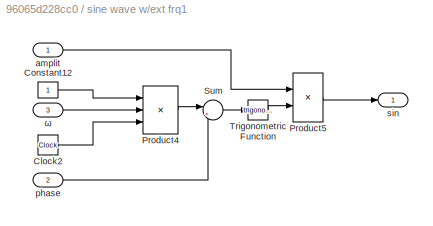
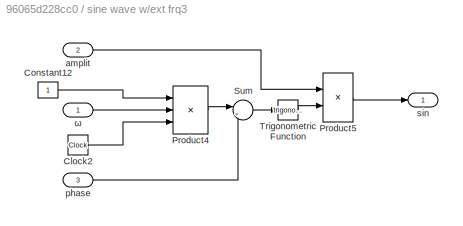
MODEL slx_96065d228cc0
KIND model
CONFIG AbsTol = auto
CONFIG EnableMultiTasking = off
CONFIG FixedStep = .01
CONFIG MaxStep = .0098
CONFIG MinStep = auto
CONFIG RelTol = 1e-3
CONFIG SampleTimeConstraint = Unconstrained
CONFIG SolverName = VariableStepAuto
CONFIG StartFcn = disp('<copyright redacted>\n
CONFIG StartTime = 0.0
CONFIG StopTime = 15000
BLOCK [Constant] Amplitude sin
  Value = amplitSin
BLOCK [Constant] Constant14
  Value = 0
BLOCK [Constant] Constant18
  Value = 0
BLOCK [Constant] Constant19
BLOCK [Constant] Constant2
  Value = .1
BLOCK [Constant] Constant23
BLOCK [Constant] Constant24
  Value = perturbCASE
BLOCK [Constant] Constant25
  Value = .7
BLOCK [Constant] Constant26
  Value = 0
BLOCK [Constant] Constant27
  Value = perturbCASE
BLOCK [Constant] Constant3
  Value = omega_nUnstb
BLOCK [Constant] Constant4
  Value = 0
BLOCK [Constant] Constant5
  Value = 0
BLOCK [Constant] Constant6
  Value = omega_sd
BLOCK [From] From10
  GotoTag = w2
BLOCK [From] From11
  GotoTag = sinEta1
BLOCK [From] From4
  GotoTag = r_des
BLOCK [From] From5
  GotoTag = targetW
BLOCK [From] From7
  GotoTag = err
BLOCK [From] From8
  GotoTag = Output
BLOCK [From] From9
  GotoTag = w1
BLOCK [Gain] Gain6
BLOCK [Goto] Goto2
  GotoTag = r_des
BLOCK [Goto] Goto3
  GotoTag = targetW
BLOCK [Goto] Goto4
  GotoTag = err
BLOCK [Goto] Goto5
  GotoTag = w1
BLOCK [Goto] Goto6
  GotoTag = w2
BLOCK [Goto] Goto7
  GotoTag = Output
BLOCK [Goto] Goto9
  GotoTag = sinEta1
BLOCK [Mux] Mux3
  DisplayOption = bar
  Inputs = 5
  Ports = [5, 1]
BLOCK [Product] Product5
  Ports = [2, 1]
BLOCK [Product] Product6
  Ports = [2, 1]
BLOCK [Product] Product7
  Ports = [2, 1]
BLOCK [DiscretePulseGenerator] Pulse Generator2
  Period = StopTime+.1
  Ports = [0, 1]
  PulseType = Time based
  PulseWidth = 2
BLOCK [Reference] Random Source3  REF=dspsrcs4/Random
Source
  Ports = [0, 1]
  SourceBlock = dspsrcs4/Random\nSource
  SourceProductBaseCode = DS
  SourceType = Random Source
  UserDataPersistent = on
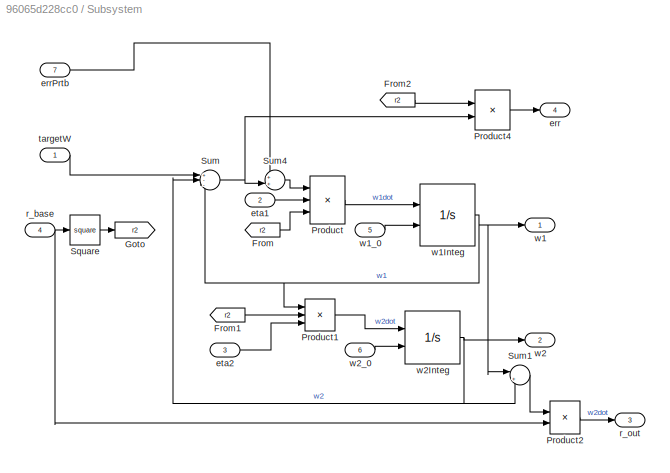
BLOCK [SubSystem] Subsystem
  Description = %-----------------------------------------------------------------------------\n% <copyright redacted>\n% Licensed under the Non-Commercial License (for non-commercial use only).\n% For commercial use, a separate commercial license must be obtained.\n% For more information, contact <email>\n%-----------------------------------------------------------------------------
  Permissions = ReadOnly
  PortSchema = {"entries":[{"content":{"sides":[{"content":{"connectorIds":["In1","In2","In3","In4","In5","In6","In7"]},"type":"ConnectorPlacement.EquallySpacedRectSide","uuid":"f4103d7f-83fd-4af7-b9e6-e4c3830d16fd"},{"content":{"connectorIds":["Out1","Out2","Out3"],"side":"RIGHT"},"type":"ConnectorPlacement.EquallySpacedRectSide","uuid":"89738b27-e148-48c9-aa81-4b16f7796127"},{"content":{"connectorIds":[],"side...<+440ch>
  Ports = [7, 4]
  RequestExecContextInheritance = off
BLOCK [From] Subsystem/From
  GotoTag = r2
BLOCK [From] Subsystem/From1
  GotoTag = r2
BLOCK [From] Subsystem/From2
  GotoTag = r2
BLOCK [Goto] Subsystem/Goto
  GotoTag = r2
BLOCK [Product] Subsystem/Product
  Inputs = 3
  Ports = [3, 1]
BLOCK [Product] Subsystem/Product1
  Inputs = 3
  Ports = [3, 1]
BLOCK [Product] Subsystem/Product2
  Ports = [2, 1]
BLOCK [Product] Subsystem/Product4
  Ports = [2, 1]
BLOCK [Math] Subsystem/Square
  Operator = square
  Ports = [1, 1]
BLOCK [Sum] Subsystem/Sum
  Inputs = +--
  Ports = [3, 1]
BLOCK [Sum] Subsystem/Sum1
  Inputs = |++
  Ports = [2, 1]
BLOCK [Sum] Subsystem/Sum4
  Inputs = ++|
  Ports = [2, 1]
BLOCK [Outport] Subsystem/err
  Port = 4
BLOCK [Inport] Subsystem/errPrtb
  Port = 7
BLOCK [Inport] Subsystem/eta1
  Port = 2
BLOCK [Inport] Subsystem/eta2
  Port = 3
BLOCK [Inport] Subsystem/r_base
  Port = 4
BLOCK [Outport] Subsystem/r_out
  Port = 3
BLOCK [Inport] Subsystem/targetW
BLOCK [Outport] Subsystem/w1
BLOCK [Integrator] Subsystem/w1Integ
  InitialConditionSource = external
  Ports = [2, 1]
BLOCK [Inport] Subsystem/w1_0
  Port = 5
BLOCK [Outport] Subsystem/w2
  Port = 2
BLOCK [Integrator] Subsystem/w2Integ
  InitialConditionSource = external
  Ports = [2, 1]
BLOCK [Inport] Subsystem/w2_0
  Port = 6
BLOCK [Sum] Sum8
  Inputs = +-|
  Ports = [2, 1]
BLOCK [Sum] Sum9
  Inputs = ++|
  Ports = [2, 1]
BLOCK [ToWorkspace] To Workspace1
  MaxDataPoints = inf
  Ports = [1]
  SampleTime = -1
  Save2DSignal = 2-D array (concatenate along first dimension)
  SaveFormat = Timeseries
  VariableName = Arr
BLOCK [TransferFcn] Transfer Fcn6
  Denominator = [1 100]
  Numerator = [100]
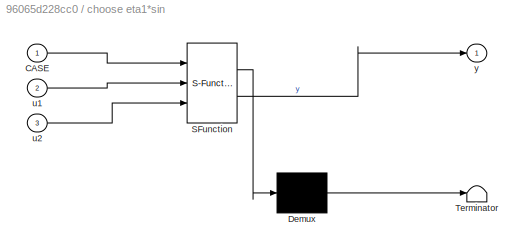
BLOCK [SubSystem] choose eta1*sin
  ErrorFcn = Stateflow.Translate.translate
  PermitHierarchicalResolution = ExplicitOnly
  Ports = [3, 1]
  RequestExecContextInheritance = off
  SFBlockType = MATLAB Function
  TreatAsAtomicUnit = on
BLOCK [Demux] choose eta1*sin/ Demux 
  Outputs = 1
  Ports = [1, 1]
BLOCK [S-Function] choose eta1*sin/ SFunction 
  EnableBusSupport = on
  FunctionName = sf_sfun
  PortCounts = [3 2]
  Ports = [3, 2]
  SFcnIsStateOwnerBlock = off
  SFunctionDeploymentMode = off
  Tag = Stateflow S-Function 1
BLOCK [Terminator] choose eta1*sin/ Terminator 
BLOCK [Inport] choose eta1*sin/CASE
BLOCK [Inport] choose eta1*sin/u1
  Port = 2
BLOCK [Inport] choose eta1*sin/u2
  Port = 3
BLOCK [Outport] choose eta1*sin/y
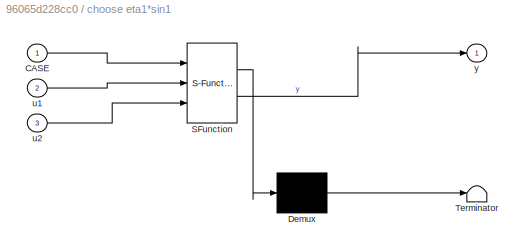
BLOCK [SubSystem] choose eta1*sin1
  ErrorFcn = Stateflow.Translate.translate
  PermitHierarchicalResolution = ExplicitOnly
  Ports = [3, 1]
  RequestExecContextInheritance = off
  SFBlockType = MATLAB Function
  TreatAsAtomicUnit = on
BLOCK [Demux] choose eta1*sin1/ Demux 
  Outputs = 1
  Ports = [1, 1]
BLOCK [S-Function] choose eta1*sin1/ SFunction 
  EnableBusSupport = on
  FunctionName = sf_sfun
  PortCounts = [3 2]
  Ports = [3, 2]
  SFcnIsStateOwnerBlock = off
  SFunctionDeploymentMode = off
  Tag = Stateflow S-Function 3
BLOCK [Terminator] choose eta1*sin1/ Terminator 
BLOCK [Inport] choose eta1*sin1/CASE
BLOCK [Inport] choose eta1*sin1/u1
  Port = 2
BLOCK [Inport] choose eta1*sin1/u2
  Port = 3
BLOCK [Outport] choose eta1*sin1/y
BLOCK [Constant] eta1val
  Value = eta1
BLOCK [Constant] eta1val3
  Value = eta1
BLOCK [Constant] eta2val
  Value = eta2
BLOCK [SubSystem] sine wave w//ext frq1
  Ports = [3, 1]
  RequestExecContextInheritance = off
BLOCK [Clock] sine wave w//ext frq1/Clock2
BLOCK [Constant] sine wave w//ext frq1/Constant12
BLOCK [Product] sine wave w//ext frq1/Product4
  Inputs = 3
  Ports = [3, 1]
BLOCK [Product] sine wave w//ext frq1/Product5
  Ports = [2, 1]
BLOCK [Sum] sine wave w//ext frq1/Sum
  Inputs = |++
  Ports = [2, 1]
BLOCK [Trigonometry] sine wave w//ext frq1/Trigonometric Function
  Ports = [1, 1]
BLOCK [Inport] sine wave w//ext frq1/amplit
BLOCK [Inport] sine wave w//ext frq1/phase
  Port = 2
BLOCK [Outport] sine wave w//ext frq1/sin
BLOCK [Inport] sine wave w//ext frq1/ω
  Port = 3
BLOCK [SubSystem] sine wave w//ext frq3
  Ports = [3, 1]
  RequestExecContextInheritance = off
BLOCK [Clock] sine wave w//ext frq3/Clock2
BLOCK [Constant] sine wave w//ext frq3/Constant12
BLOCK [Product] sine wave w//ext frq3/Product4
  Inputs = 3
  Ports = [3, 1]
BLOCK [Product] sine wave w//ext frq3/Product5
  Ports = [2, 1]
BLOCK [Sum] sine wave w//ext frq3/Sum
  Inputs = |++
  Ports = [2, 1]
BLOCK [Trigonometry] sine wave w//ext frq3/Trigonometric Function
  Ports = [1, 1]
BLOCK [Inport] sine wave w//ext frq3/amplit
  Port = 2
BLOCK [Inport] sine wave w//ext frq3/phase
  Port = 3
BLOCK [Outport] sine wave w//ext frq3/sin
BLOCK [Inport] sine wave w//ext frq3/ω
ANNOTATION (root): %----------------------------------------------------------------------------- % <copyright redacted>
LINE Amplitude sin:1 -> sine wave w//ext frq1:1
LINE Constant14:1 -> sine wave w//ext frq1:2
LINE Constant18:1 -> choose eta1*sin1:3
LINE Constant19:1 -> Sum8:1
LINE Constant23:1 -> Sum9:2
LINE Constant24:1 -> choose eta1*sin:1
LINE Constant25:1 -> sine wave w//ext frq3:2
LINE Constant26:1 -> sine wave w//ext frq3:3
LINE Constant27:1 -> choose eta1*sin1:1
NET Constant2:1 -> Goto3:1, Subsystem:1
LINE Constant3:1 -> sine wave w//ext frq1:3
LINE Constant4:1 -> Subsystem:5
LINE Constant5:1 -> Subsystem:6
LINE Constant6:1 -> sine wave w//ext frq3:1
LINE From10:1 -> Mux3:5
LINE From11:1 -> choose eta1*sin:3
LINE From4:1 -> Mux3:1
LINE From5:1 -> Product7:1
LINE From7:1 -> Mux3:3
LINE From8:1 -> Mux3:2
LINE From9:1 -> Mux3:4
LINE Gain6:1 -> Product5:1
LINE Mux3:1 -> To Workspace1:1
LINE Product5:1 -> choose eta1*sin1:2
LINE Product6:1 -> Goto9:1
LINE Product7:1 -> Goto2:1
LINE Pulse Generator2:1 -> Sum8:2
LINE Random Source3:1 -> Gain6:1
LINE Subsystem/From1:1 -> Subsystem/Product1:2
LINE Subsystem/From2:1 -> Subsystem/Product4:1
LINE Subsystem/From:1 -> Subsystem/Product:3
LINE Subsystem/Product1:1 -> Subsystem/w2Integ:1
LINE Subsystem/Product2:1 -> Subsystem/r_out:1
LINE Subsystem/Product4:1 -> Subsystem/err:1
LINE Subsystem/Product:1 -> Subsystem/w1Integ:1
LINE Subsystem/Square:1 -> Subsystem/Goto:1
LINE Subsystem/Sum1:1 -> Subsystem/Product2:1
LINE Subsystem/Sum4:1 -> Subsystem/Product:1
NET Subsystem/Sum:1 -> Subsystem/Product4:2, Subsystem/Sum4:2
LINE Subsystem/errPrtb:1 -> Subsystem/Sum4:1
LINE Subsystem/eta1:1 -> Subsystem/Product:2
LINE Subsystem/eta2:1 -> Subsystem/Product1:3
NET Subsystem/r_base:1 -> Subsystem/Product2:2, Subsystem/Square:1
LINE Subsystem/targetW:1 -> Subsystem/Sum:1
NET Subsystem/w1Integ:1 -> Subsystem/Product1:1, Subsystem/Sum1:1, Subsystem/Sum:3, Subsystem/w1:1
LINE Subsystem/w1_0:1 -> Subsystem/w1Integ:2
NET Subsystem/w2Integ:1 -> Subsystem/Sum1:2, Subsystem/Sum:2, Subsystem/w2:1
LINE Subsystem/w2_0:1 -> Subsystem/w2Integ:2
LINE Subsystem:1 -> Goto5:1
LINE Subsystem:2 -> Goto6:1
LINE Subsystem:3 -> Goto7:1
LINE Subsystem:4 -> Goto4:1
LINE Sum8:1 -> Transfer Fcn6:1
LINE Sum9:1 -> Product6:1
NET Transfer Fcn6:1 -> Product7:2, Subsystem:4
LINE choose eta1*sin1:1 -> Subsystem:7
LINE choose eta1*sin:1 -> Subsystem:2
LINE eta1val3:1 -> Product6:2
LINE eta1val:1 -> choose eta1*sin:2
LINE eta2val:1 -> Subsystem:3
LINE sine wave w//ext frq1/Clock2:1 -> sine wave w//ext frq1/Product4:3
LINE sine wave w//ext frq1/Constant12:1 -> sine wave w//ext frq1/Product4:1
LINE sine wave w//ext frq1/Product4:1 -> sine wave w//ext frq1/Sum:1
LINE sine wave w//ext frq1/Product5:1 -> sine wave w//ext frq1/sin:1
LINE sine wave w//ext frq1/Sum:1 -> sine wave w//ext frq1/Trigonometric Function:1
LINE sine wave w//ext frq1/Trigonometric Function:1 -> sine wave w//ext frq1/Product5:2
LINE sine wave w//ext frq1/amplit:1 -> sine wave w//ext frq1/Product5:1
LINE sine wave w//ext frq1/phase:1 -> sine wave w//ext frq1/Sum:2
LINE sine wave w//ext frq1/ω:1 -> sine wave w//ext frq1/Product4:2
LINE sine wave w//ext frq1:1 -> Product5:2
LINE sine wave w//ext frq3/Clock2:1 -> sine wave w//ext frq3/Product4:3
LINE sine wave w//ext frq3/Constant12:1 -> sine wave w//ext frq3/Product4:1
LINE sine wave w//ext frq3/Product4:1 -> sine wave w//ext frq3/Sum:1
LINE sine wave w//ext frq3/Product5:1 -> sine wave w//ext frq3/sin:1
LINE sine wave w//ext frq3/Sum:1 -> sine wave w//ext frq3/Trigonometric Function:1
LINE sine wave w//ext frq3/Trigonometric Function:1 -> sine wave w//ext frq3/Product5:2
LINE sine wave w//ext frq3/amplit:1 -> sine wave w//ext frq3/Product5:1
LINE sine wave w//ext frq3/phase:1 -> sine wave w//ext frq3/Sum:2
LINE sine wave w//ext frq3/ω:1 -> sine wave w//ext frq3/Product4:2
LINE sine wave w//ext frq3:1 -> Sum9:1
note: NET lines group one-source signal fan-out (src -> all destinations, sorted); 1:1 wires keep LINE
CHART choose eta1*sin1 states=1 transitions=1
  STATE_LABEL 'eML_blk_kernel()'
  STATE_LABEL "SCRIPT:\nfunction y = fcn(CASE, u1, u2)\n    y=u1;\n    if CASE==1\n        y = u1;\n    elseif CASE==2\n        y = u2;\n    else\n        error('valueError')\n    end\nend\n"
CHART choose eta1*sin states=1 transitions=1
  STATE_LABEL 'eML_blk_kernel()'
  STATE_LABEL "SCRIPT:\nfunction y = fcn(CASE, u1, u2)\n    y=u1;\n    if CASE==1\n        y = u1;\n    elseif CASE==2\n        y = u2;\n    else\n        error('valueError')\n    end\nend\n"
CHART  states=0 transitions=0
CHART  states=0 transitions=0
